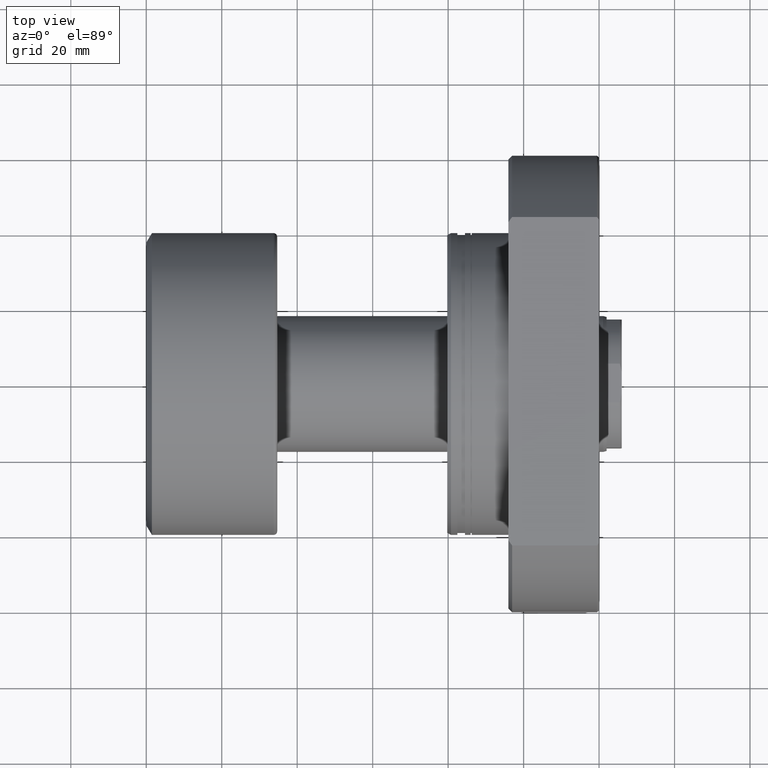
[diagram: clean part render]
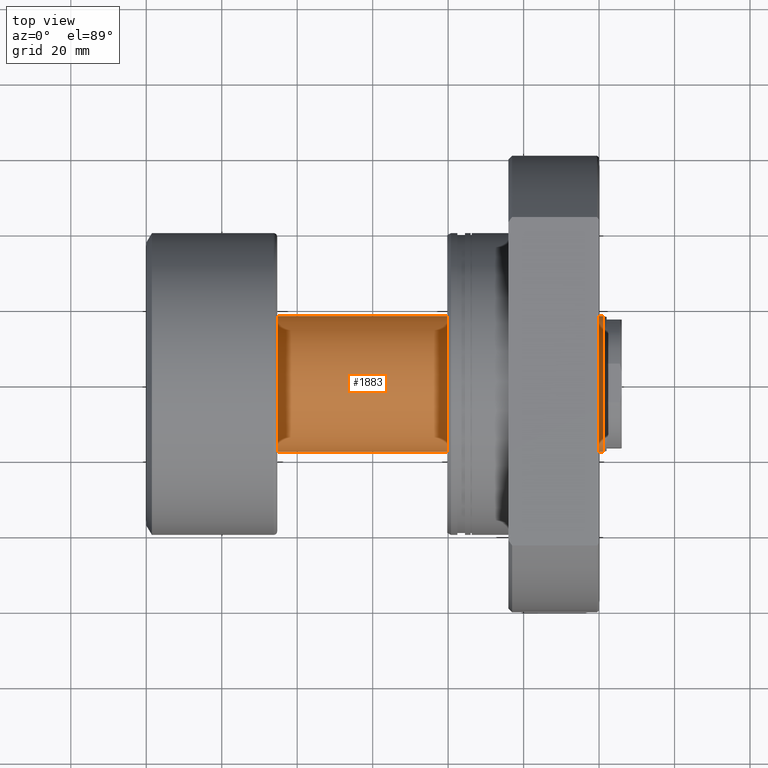
[diagram: same view with one face highlighted and labeled with its STEP entity id]
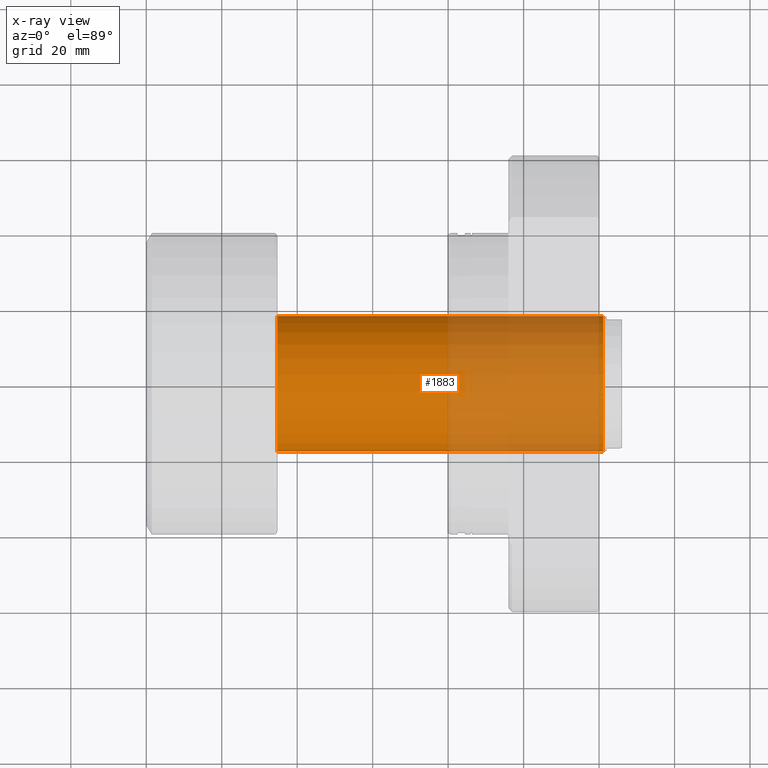
[diagram: x-ray of the same camera — body ghosted, the highlighted face saturated]
A machine part, top view. The second image highlights one B-rep face of the part: STEP entity #1883.
The next image is the same camera in x-ray: the body ghosted, the highlighted face saturated — about 46% of this face is hidden behind the body in this view.
In plain terms, the highlighted cylindrical surface (partial cylindrical patch) has radius 18 mm, axis along (-1, -0, -0).
Its self-contained STEP definition (entity closure, byte-faithful):
#47 = LINE ( 'NONE', #348, #937 ) ;
#254 = CYLINDRICAL_SURFACE ( 'NONE', #526, 18.00000000000009592 ) ;
#348 = CARTESIAN_POINT ( 'NONE',  ( 1.925176179724328764E-16, -18.00000000000009592, 0.000000000000000000 ) ) ;
#381 = DIRECTION ( 'NONE',  ( 0.000000000000000000, -1.000000000000000000, 0.000000000000000000 ) ) ;
#496 = CARTESIAN_POINT ( 'NONE',  ( -1.925176179724328764E-16, 18.00000000000009592, 2.204364238465247261E-15 ) ) ;
#526 = AXIS2_PLACEMENT_3D ( 'NONE', #561, #2018, #1558 ) ;
#533 = AXIS2_PLACEMENT_3D ( 'NONE', #3037, #2985, #576 ) ;
#561 = CARTESIAN_POINT ( 'NONE',  ( 0.000000000000000000, 0.000000000000000000, 0.000000000000000000 ) ) ;
#576 = DIRECTION ( 'NONE',  ( 0.000000000000000000, -1.000000000000000000, 0.000000000000000000 ) ) ;
#937 = VECTOR ( 'NONE', #3168, 1000.000000000000000 ) ;
#1005 = CARTESIAN_POINT ( 'NONE',  ( 121.0667575123237754, 18.00000000000019185, 2.204364238465259094E-15 ) ) ;
#1044 = VERTEX_POINT ( 'NONE', #1939 ) ;
#1262 = FACE_OUTER_BOUND ( 'NONE', #2442, .T. ) ;
#1512 = CARTESIAN_POINT ( 'NONE',  ( 34.70000000000000284, 18.00000000000000000, 2.204364238465241739E-15 ) ) ;
#1558 = DIRECTION ( 'NONE',  ( 1.069542322069065801E-17, -1.000000000000000000, 0.000000000000000000 ) ) ;
#1617 = ORIENTED_EDGE ( 'NONE', *, *, #1655, .F. ) ;
#1627 = EDGE_CURVE ( 'NONE', #3198, #2711, #2242, .T. ) ;
#1655 = EDGE_CURVE ( 'NONE', #2008, #1044, #47, .T. ) ;
#1762 = ORIENTED_EDGE ( 'NONE', *, *, #2446, .F. ) ;
#1883 = ADVANCED_FACE ( 'NONE', ( #1262 ), #254, .T. ) ;
#1891 = CARTESIAN_POINT ( 'NONE',  ( 121.0667575123237754, -18.00000000000019185, 0.000000000000000000 ) ) ;
#1939 = CARTESIAN_POINT ( 'NONE',  ( 34.70000000000000284, -18.00000000000000000, 0.000000000000000000 ) ) ;
#2008 = VERTEX_POINT ( 'NONE', #1891 ) ;
#2018 = DIRECTION ( 'NONE',  ( -1.000000000000000000, -1.069542322069065801E-17, -0.000000000000000000 ) ) ;
#2053 = AXIS2_PLACEMENT_3D ( 'NONE', #2794, #2099, #381 ) ;
#2099 = DIRECTION ( 'NONE',  ( -1.000000000000000000, -1.069542322069065801E-17, -0.000000000000000000 ) ) ;
#2104 = CIRCLE ( 'NONE', #533, 18.00000000000019185 ) ;
#2242 = LINE ( 'NONE', #496, #2809 ) ;
#2442 = EDGE_LOOP ( 'NONE', ( #2645, #3152, #1762, #1617 ) ) ;
#2446 = EDGE_CURVE ( 'NONE', #1044, #2711, #3020, .T. ) ;
#2645 = ORIENTED_EDGE ( 'NONE', *, *, #2683, .T. ) ;
#2683 = EDGE_CURVE ( 'NONE', #2008, #3198, #2104, .T. ) ;
#2697 = DIRECTION ( 'NONE',  ( -1.000000000000000000, -1.069542322069065801E-17, -0.000000000000000000 ) ) ;
#2711 = VERTEX_POINT ( 'NONE', #1512 ) ;
#2794 = CARTESIAN_POINT ( 'NONE',  ( 34.70000000000000284, 3.711311857579658694E-16, 0.000000000000000000 ) ) ;
#2809 = VECTOR ( 'NONE', #2697, 1000.000000000000000 ) ;
#2985 = DIRECTION ( 'NONE',  ( -1.000000000000000000, -1.069542322069065801E-17, -0.000000000000000000 ) ) ;
#3020 = CIRCLE ( 'NONE', #2053, 18.00000000000000000 ) ;
#3037 = CARTESIAN_POINT ( 'NONE',  ( 121.0667575123237754, 1.294860209551032895E-15, 0.000000000000000000 ) ) ;
#3152 = ORIENTED_EDGE ( 'NONE', *, *, #1627, .T. ) ;
#3168 = DIRECTION ( 'NONE',  ( -1.000000000000000000, -1.069542322069065801E-17, -0.000000000000000000 ) ) ;
#3198 = VERTEX_POINT ( 'NONE', #1005 ) ;